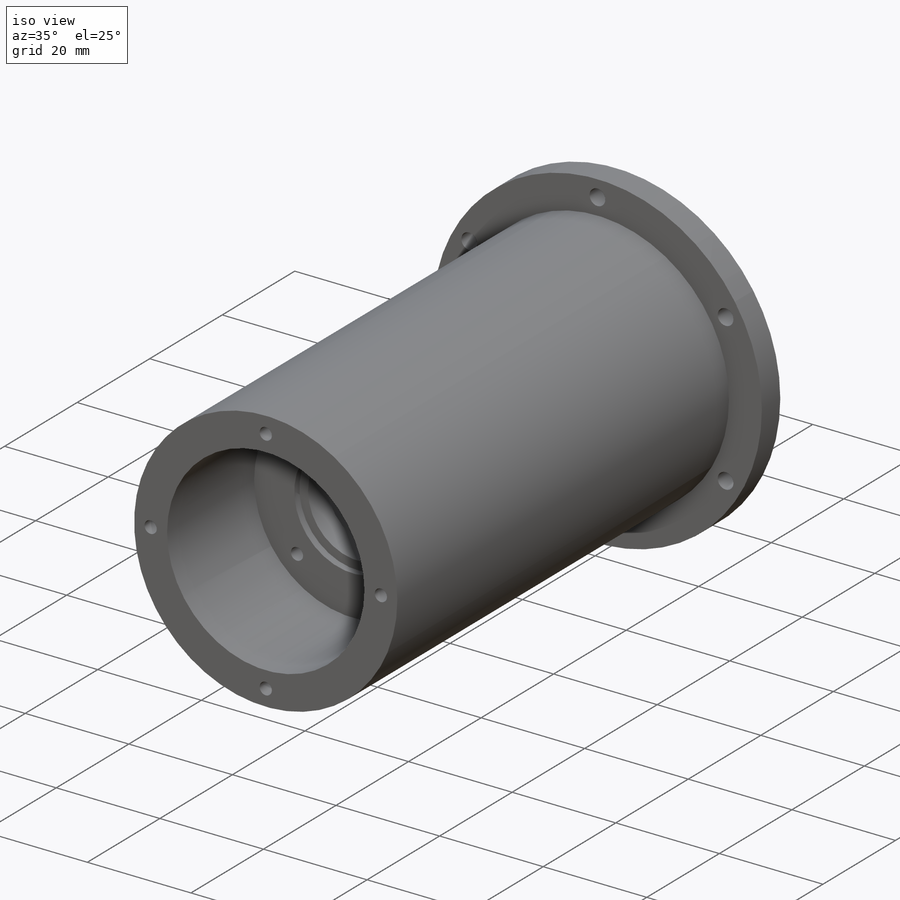
[diagram: iso view]
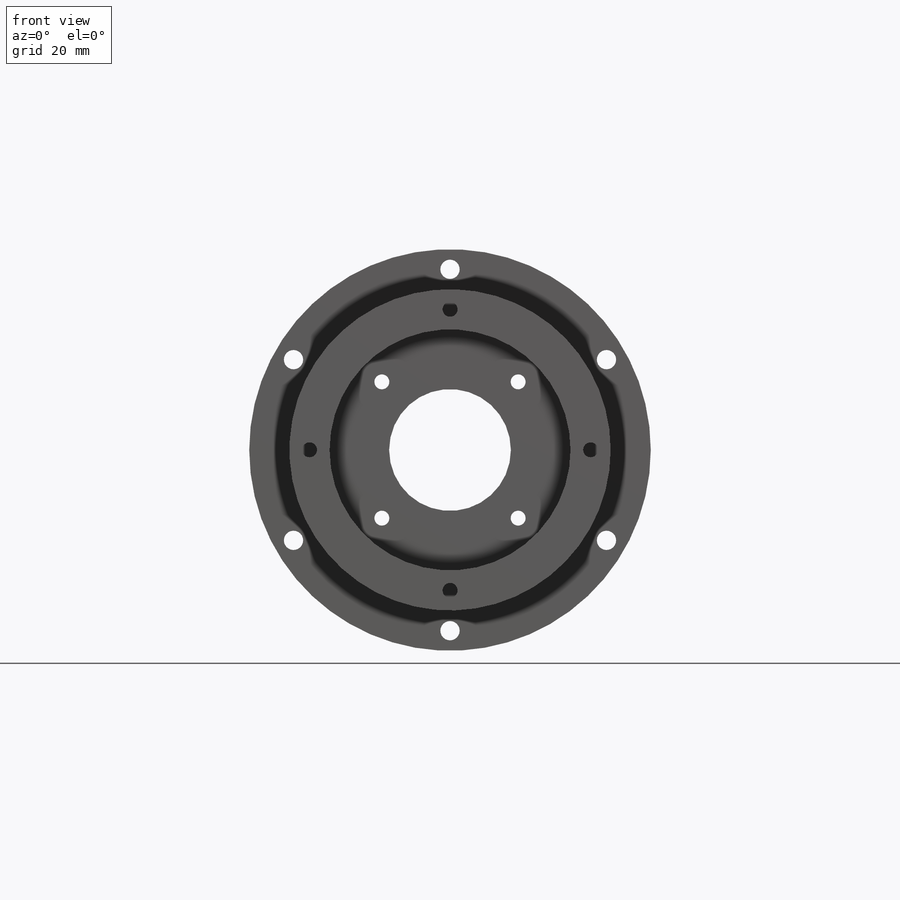
[diagram: front view]
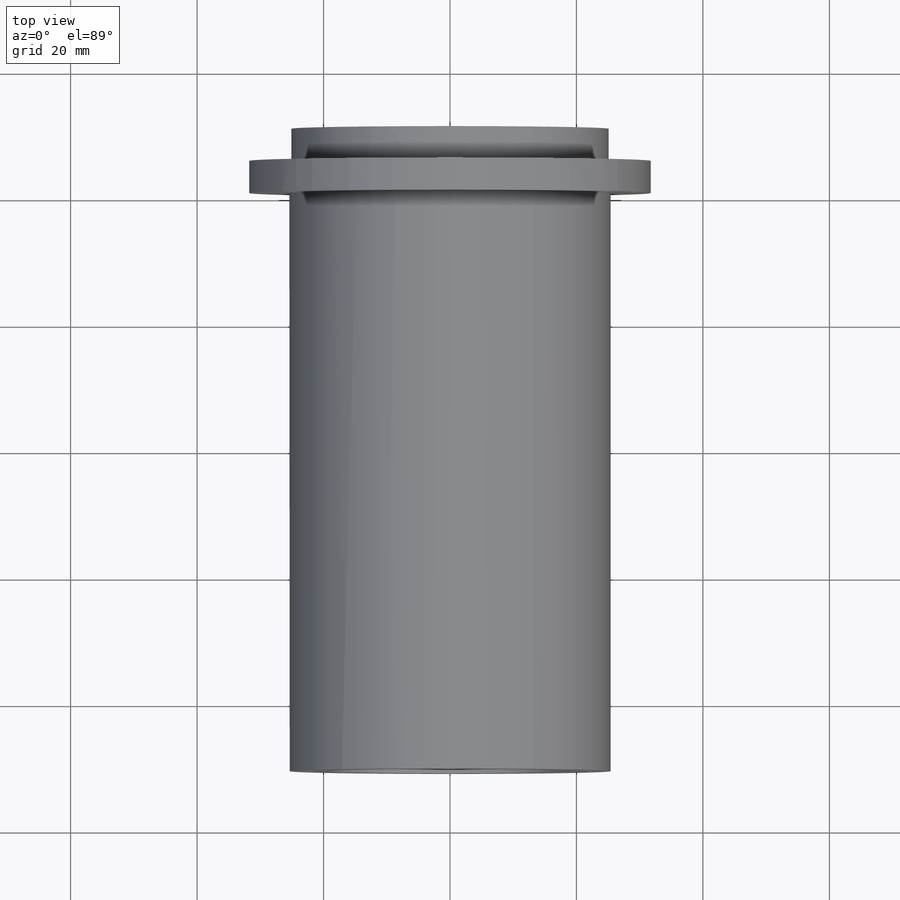
[diagram: top view]
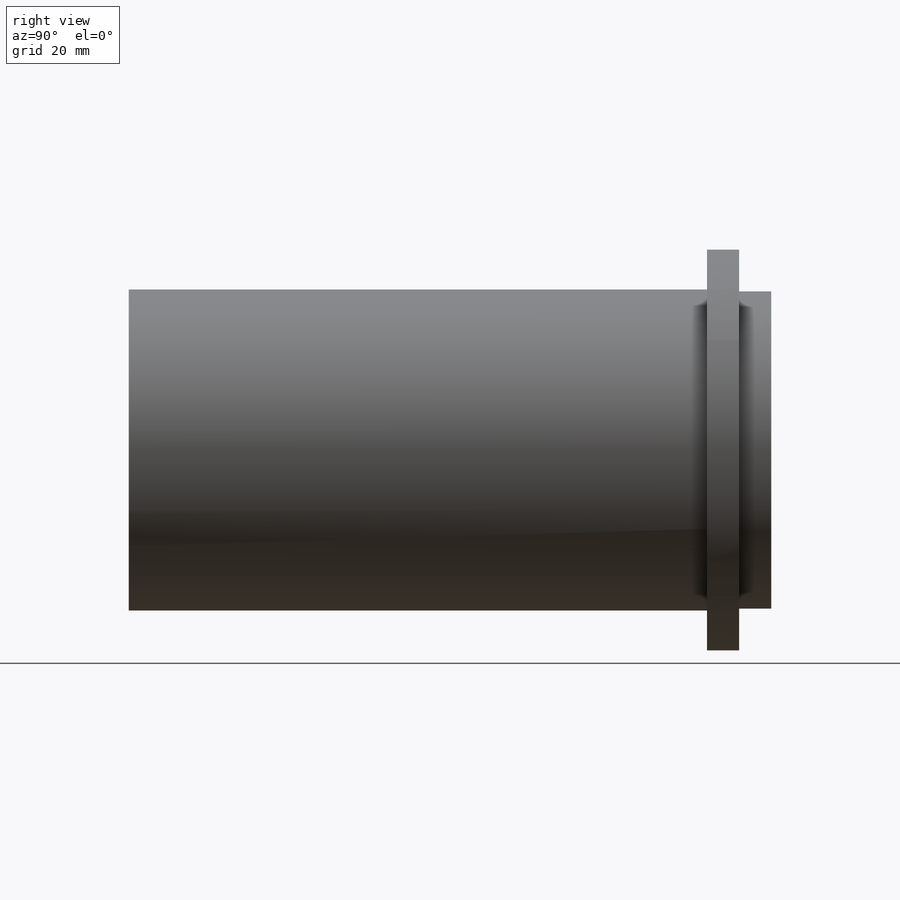
[diagram: right view]
SOLIDWORKS PART (.sldprt)
format: sldprt  version: not decoded by parser v0  size: 371,200 bytes
history: native  units: mm
features: sketch x10, cut_extrude x9, pattern_circular x3, material x1, extrude x1 (+11 scaffold rows collapsed)
feature tree (35):
  scaffold x11  (default folders/planes/origin — collapsed)
  material  "1060 Alloy"
  sketch  "Sketch1"  dims[D1=63.5mm]
  extrude  "Boss-Extrude1"  Depth=101.6mm
  sketch  "Sketch2"  dims[D1=50.165mm]
  cut_extrude  "Cut-Extrude1"  Depth=5.08mm
  sketch  "Sketch3"  dims[D1=2.54mm]
  cut_extrude  "Cut-Extrude2"  Depth=30.353mm
  sketch  "Sketch4"  dims[D1=50.8mm]
  cut_extrude  "Cut-Extrude3"  Depth=5.08mm
  sketch  "Sketch5"  dims[D1=38.1mm]
  cut_extrude  "Cut-Extrude4"  Depth=24.003mm
  sketch  "Sketch6"  dims[D1=19.2532mm]
  cut_extrude  "Cut-Extrude5"  [1 undecoded]
  sketch  "Sketch8"  dims[D1=57.15mm D2=3.048mm]
  cut_extrude  "Cut-Extrude6"  [1 undecoded]
  pattern_circular  "CirPattern1"  Count=6 Angle=360deg
  sketch  "Sketch9"  dims[D1=44.45mm D2=2.3622mm]
  cut_extrude  "Cut-Extrude7"  Depth=12.7mm
  pattern_circular  "CirPattern2"  Count=4 Angle=360deg
  sketch  "Sketch10"  dims[D1=22.606mm]
  cut_extrude  "Cut-Extrude8"  Depth=1.397mm
  sketch  "Sketch11"  dims[c1.D1=30.48mm c1.D3=2.3622mm c1.D2=~12.460942mm c2.D2=45.0deg]
  cut_extrude  "Cut-Extrude9"  [1 undecoded]
  pattern_circular  "CirPattern3"  Count=4 Angle=360deg
decode coverage: 20 of 23 modeling features carry decoded parameters
note: ~ marks probable driven/reference dimensions
note: 3 parameter values undecoded
summary: no parameter record found for 3 features
note: suppression state not decoded; provenance and decode notes live in map.json
